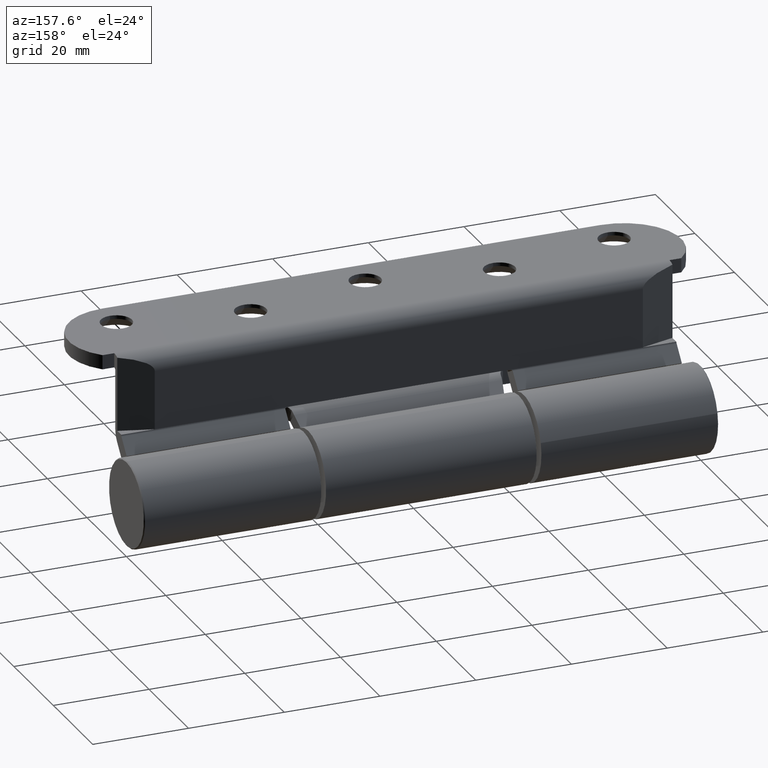
[diagram: clean part render]
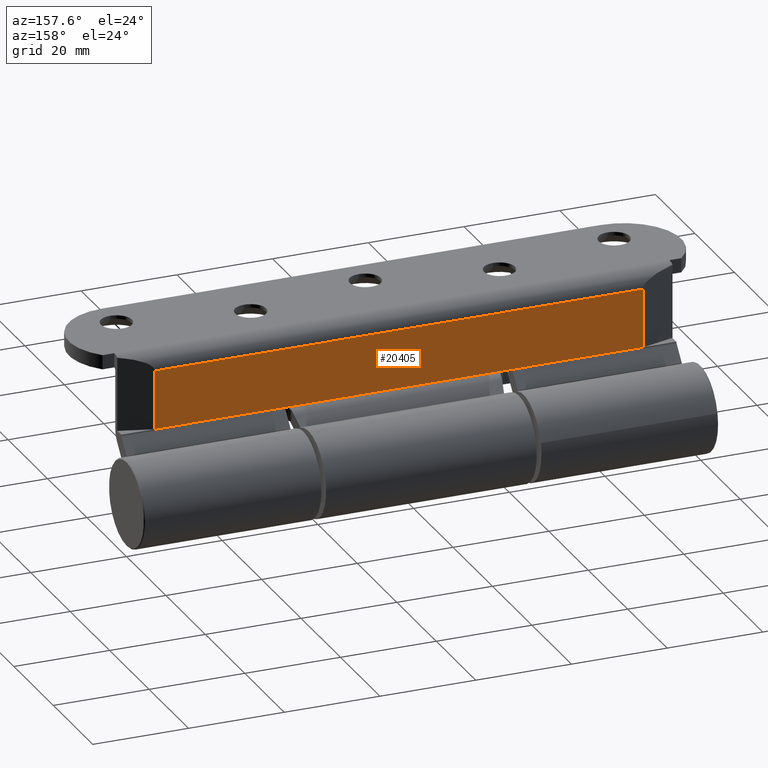
[diagram: same view with one face highlighted and labeled with its STEP entity id]
A machine part, auxiliary view. The second image highlights one B-rep face of the part: STEP entity #20405.
In plain terms, the highlighted planar face has unit normal (0, 1, -0).
Its self-contained STEP definition (entity closure, byte-faithful):
#1487 = AXIS2_PLACEMENT_3D ( 'NONE', #7782, #14405, #3637 ) ;
#1907 = EDGE_CURVE ( 'NONE', #24239, #37024, #24611, .T. ) ;
#2497 = LINE ( 'NONE', #32503, #21176 ) ;
#2604 = ORIENTED_EDGE ( 'NONE', *, *, #36843, .F. ) ;
#3046 = EDGE_CURVE ( 'NONE', #39829, #24239, #2497, .T. ) ;
#3145 = VECTOR ( 'NONE', #29003, 1000.000000000000000 ) ;
#3557 = LINE ( 'NONE', #29193, #11691 ) ;
#3637 = DIRECTION ( 'NONE',  ( 2.168404344971008868E-16, 0.000000000000000000, 1.000000000000000000 ) ) ;
#3840 = DIRECTION ( 'NONE',  ( 0.000000000000000000, -1.000000000000000000, -0.000000000000000000 ) ) ;
#5245 = EDGE_CURVE ( 'NONE', #10344, #39829, #30604, .T. ) ;
#6387 = VECTOR ( 'NONE', #43311, 1000.000000000000000 ) ;
#7782 = CARTESIAN_POINT ( 'NONE',  ( -24.00000000000000711, 64.00000000000000000, -1.387778780781445676E-14 ) ) ;
#8175 = CARTESIAN_POINT ( 'NONE',  ( -23.99999999999999289, -51.00000000000000711, 15.81427028705640758 ) ) ;
#8855 = ORIENTED_EDGE ( 'NONE', *, *, #1907, .F. ) ;
#10238 = CARTESIAN_POINT ( 'NONE',  ( -24.00000000000000711, -22.74999999999999289, 15.81427028705640758 ) ) ;
#10344 = VERTEX_POINT ( 'NONE', #25833 ) ;
#11116 = EDGE_LOOP ( 'NONE', ( #2604, #8855, #17016, #21302, #12987, #33252 ) ) ;
#11691 = VECTOR ( 'NONE', #33318, 1000.000000000000000 ) ;
#12987 = ORIENTED_EDGE ( 'NONE', *, *, #47182, .T. ) ;
#13599 = CARTESIAN_POINT ( 'NONE',  ( -23.99999999999999289, 51.00000000000000711, 15.81427028705640758 ) ) ;
#14195 = EDGE_CURVE ( 'NONE', #31401, #39694, #40906, .T. ) ;
#14405 = DIRECTION ( 'NONE',  ( -1.000000000000000000, 0.000000000000000000, 2.168404344971008868E-16 ) ) ;
#16679 = VECTOR ( 'NONE', #3840, 1000.000000000000000 ) ;
#17016 = ORIENTED_EDGE ( 'NONE', *, *, #3046, .F. ) ;
#19894 = CARTESIAN_POINT ( 'NONE',  ( -24.00000000000001421, 22.74999999999999289, 15.81427028705640048 ) ) ;
#20405 = ADVANCED_FACE ( 'NONE', ( #37539 ), #29998, .T. ) ;
#21176 = VECTOR ( 'NONE', #32985, 1000.000000000000000 ) ;
#21302 = ORIENTED_EDGE ( 'NONE', *, *, #5245, .F. ) ;
#22392 = CARTESIAN_POINT ( 'NONE',  ( -24.00000000000000711, 64.00000000000000000, 3.499999999999985789 ) ) ;
#24239 = VERTEX_POINT ( 'NONE', #10238 ) ;
#24611 = LINE ( 'NONE', #47276, #3145 ) ;
#25833 = CARTESIAN_POINT ( 'NONE',  ( -23.99999999999999289, 51.00000000000000711, 15.81427028705640758 ) ) ;
#29003 = DIRECTION ( 'NONE',  ( 0.000000000000000000, -1.000000000000000000, -0.000000000000000000 ) ) ;
#29193 = CARTESIAN_POINT ( 'NONE',  ( -23.99999999999999289, -51.00000000000000711, 15.81427028705640758 ) ) ;
#29998 = PLANE ( 'NONE',  #1487 ) ;
#30360 = DIRECTION ( 'NONE',  ( 0.000000000000000000, -1.000000000000000000, -0.000000000000000000 ) ) ;
#30604 = LINE ( 'NONE', #38380, #31723 ) ;
#31401 = VERTEX_POINT ( 'NONE', #38404 ) ;
#31723 = VECTOR ( 'NONE', #30360, 1000.000000000000000 ) ;
#32134 = LINE ( 'NONE', #13599, #6387 ) ;
#32503 = CARTESIAN_POINT ( 'NONE',  ( -24.00000000000001421, 0.000000000000000000, 15.81427028705640048 ) ) ;
#32985 = DIRECTION ( 'NONE',  ( 0.000000000000000000, -1.000000000000000000, 0.000000000000000000 ) ) ;
#33252 = ORIENTED_EDGE ( 'NONE', *, *, #14195, .T. ) ;
#33318 = DIRECTION ( 'NONE',  ( -1.224646799147352961E-16, -0.000000000000000000, -1.000000000000000000 ) ) ;
#34284 = CARTESIAN_POINT ( 'NONE',  ( -24.00000000000000711, -51.00000000000000711, 3.499999999999985789 ) ) ;
#36843 = EDGE_CURVE ( 'NONE', #37024, #39694, #3557, .T. ) ;
#37024 = VERTEX_POINT ( 'NONE', #8175 ) ;
#37539 = FACE_OUTER_BOUND ( 'NONE', #11116, .T. ) ;
#38380 = CARTESIAN_POINT ( 'NONE',  ( -24.00000000000000711, 64.00000000000000000, 15.81427028705640758 ) ) ;
#38404 = CARTESIAN_POINT ( 'NONE',  ( -24.00000000000000000, 50.99999999999997868, 3.500000000000003109 ) ) ;
#39694 = VERTEX_POINT ( 'NONE', #34284 ) ;
#39829 = VERTEX_POINT ( 'NONE', #19894 ) ;
#40906 = LINE ( 'NONE', #22392, #16679 ) ;
#43311 = DIRECTION ( 'NONE',  ( -1.224646799147352961E-16, -0.000000000000000000, -1.000000000000000000 ) ) ;
#47182 = EDGE_CURVE ( 'NONE', #10344, #31401, #32134, .T. ) ;
#47276 = CARTESIAN_POINT ( 'NONE',  ( -24.00000000000000711, 64.00000000000000000, 15.81427028705640758 ) ) ;